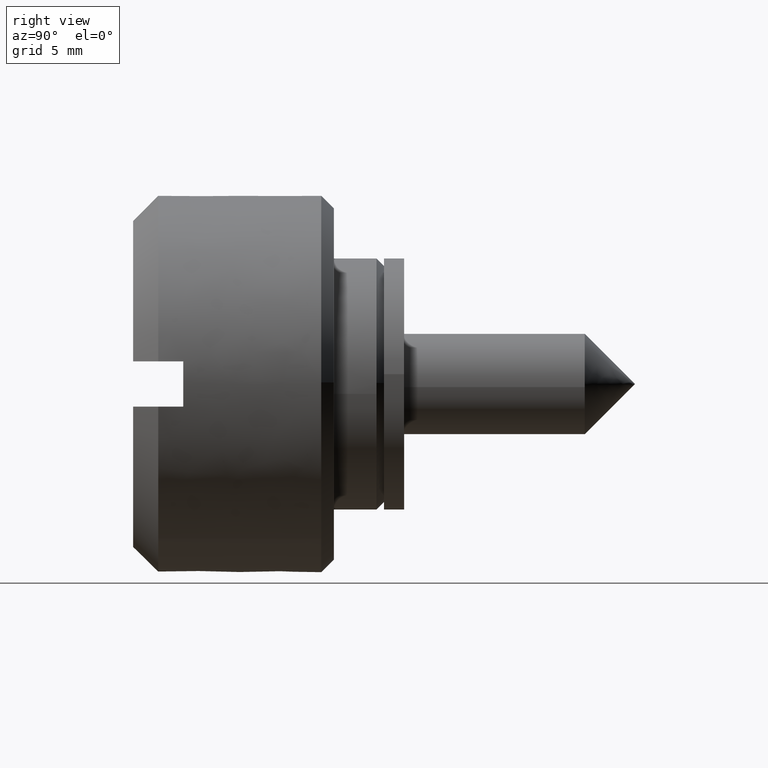
[diagram: clean part render]
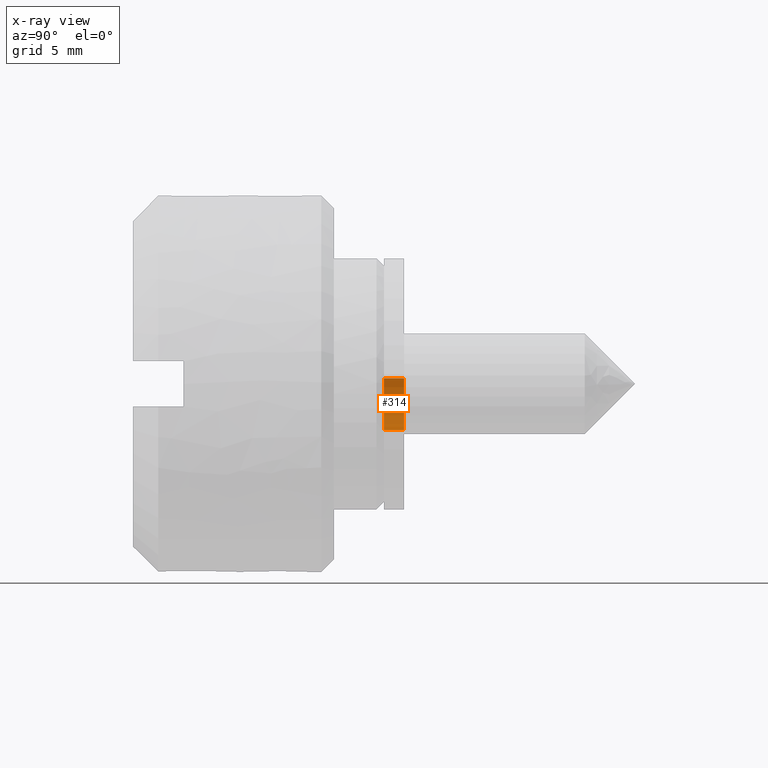
[diagram: x-ray — body ghosted, one internal face saturated and labeled with its STEP entity id]
A machine part, right view, then the same camera in x-ray: the body is ghosted and one INTERNAL B-rep face — a face not visible from any outside direction — is saturated and labeled: STEP entity #314.
In plain terms, the highlighted face is a freeform B-spline surface patch.
Its self-contained STEP definition (entity closure, byte-faithful):
#231=CARTESIAN_POINT('',(0.799999999999983,1.987450786638745,0.223694815963686));
#232=VERTEX_POINT('',#231);
#247=CARTESIAN_POINT('',(0.0,1.987450786638745,0.223694815963687));
#248=VERTEX_POINT('',#247);
#254=CARTESIAN_POINT('',(0.0,1.987450786638745,0.223694815963687));
#255=CARTESIAN_POINT('',(0.799999999999983,1.987450786638745,0.223694815963686));
#256=QUASI_UNIFORM_CURVE('',1,(#254,#255),.UNSPECIFIED.,.F.,.U.);
#257=EDGE_CURVE('',#248,#232,#256,.T.);
#262=CARTESIAN_POINT('',(-0.020000000000001,1.980154498379852,0.281048327776622));
#263=CARTESIAN_POINT('',(0.820500000000024,1.980154498379852,0.281048327776622));
#264=CARTESIAN_POINT('',(-0.020000000000001,2.207309813497701,-1.319397483873988));
#265=CARTESIAN_POINT('',(0.820500000000024,2.207309813497701,-1.319397483873988));
#266=CARTESIAN_POINT('',(-0.020000000000001,0.690102297557227,-1.877167765253344));
#267=CARTESIAN_POINT('',(0.820500000000023,0.690102297557227,-1.877167765253344));
#275=(BOUNDED_SURFACE()B_SPLINE_SURFACE(1,2,((#262,#264,#266),(#263,#265,#267)),.UNSPECIFIED.,.F.,.F.,.U.)B_SPLINE_SURFACE_WITH_KNOTS((2,2),(3,3),(0.0,1.0),(0.0,2.828746846640661),.UNSPECIFIED.)GEOMETRIC_REPRESENTATION_ITEM()RATIONAL_B_SPLINE_SURFACE(((1.0,0.775080328912731,0.993193092685924),(1.0,0.775080328912731,0.993193092685924)))REPRESENTATION_ITEM('')SURFACE());
#276=CARTESIAN_POINT('',(0.800000000000023,0.800000000000000,-1.833030277982340));
#277=VERTEX_POINT('',#276);
#278=CARTESIAN_POINT('',(0.800000000000023,0.799999999999998,-1.833030277982337));
#279=CARTESIAN_POINT('',(0.800000000000023,2.152504370215349,-1.242748977575631));
#280=CARTESIAN_POINT('',(0.799999999999983,1.987450786638745,0.223694815963686));
#288=(BOUNDED_CURVE()B_SPLINE_CURVE(2,(#278,#279,#280),.UNSPECIFIED.,.F.,.U.)CURVE()GEOMETRIC_REPRESENTATION_ITEM()QUASI_UNIFORM_CURVE()RATIONAL_B_SPLINE_CURVE((1.0,0.804667731009349,1.0))REPRESENTATION_ITEM(''));
#289=EDGE_CURVE('',#277,#232,#288,.T.);
#290=ORIENTED_EDGE('',*,*,#289,.T.);
#291=ORIENTED_EDGE('',*,*,#257,.F.);
#292=CARTESIAN_POINT('',(0.0,0.800000000000000,-1.833030277982340));
#293=VERTEX_POINT('',#292);
#294=CARTESIAN_POINT('',(0.0,0.799999999999998,-1.833030277982337));
#295=CARTESIAN_POINT('',(0.0,2.152504370215352,-1.242748977575631));
#296=CARTESIAN_POINT('',(0.0,1.987450786638747,0.223694815963687));
#304=(BOUNDED_CURVE()B_SPLINE_CURVE(2,(#294,#295,#296),.UNSPECIFIED.,.F.,.U.)CURVE()GEOMETRIC_REPRESENTATION_ITEM()QUASI_UNIFORM_CURVE()RATIONAL_B_SPLINE_CURVE((1.0,0.804667731009349,1.0))REPRESENTATION_ITEM(''));
#305=EDGE_CURVE('',#293,#248,#304,.T.);
#306=ORIENTED_EDGE('',*,*,#305,.F.);
#307=CARTESIAN_POINT('',(0.0,0.800000000000000,-1.833030277982340));
#308=CARTESIAN_POINT('',(0.800000000000023,0.800000000000000,-1.833030277982340));
#309=QUASI_UNIFORM_CURVE('',1,(#307,#308),.UNSPECIFIED.,.F.,.U.);
#310=EDGE_CURVE('',#293,#277,#309,.T.);
#311=ORIENTED_EDGE('',*,*,#310,.T.);
#312=EDGE_LOOP('',(#290,#291,#306,#311));
#313=FACE_OUTER_BOUND('',#312,.T.);
#314=ADVANCED_FACE('',(#313),#275,.F.);